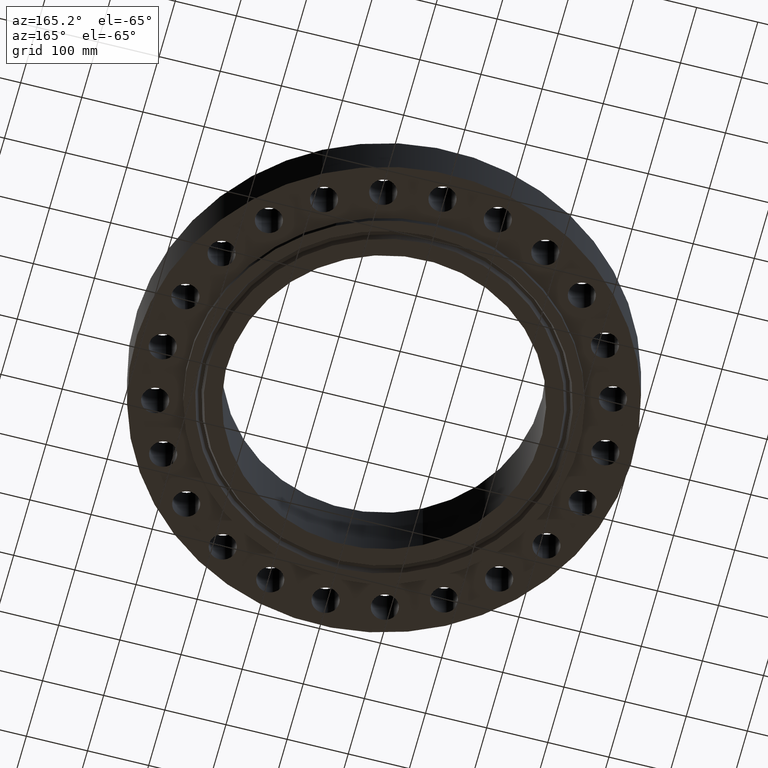
[diagram: clean part render]
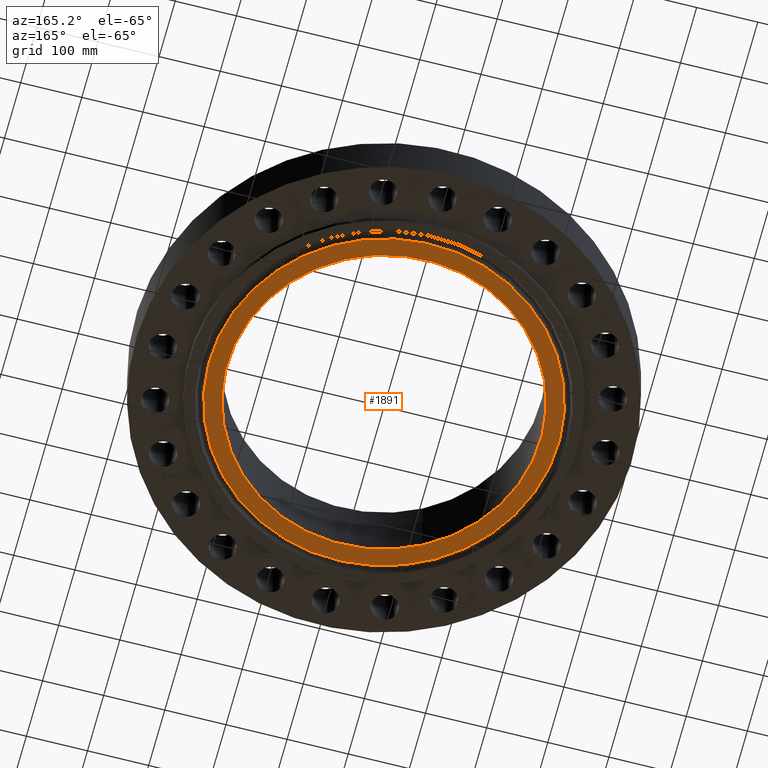
[diagram: same view with one face highlighted and labeled with its STEP entity id]
A machine part, auxiliary view. The second image highlights one B-rep face of the part: STEP entity #1891.
In plain terms, the highlighted planar face has unit normal (0, 0, -1).
Its self-contained STEP definition (entity closure, byte-faithful):
#334=AXIS2_PLACEMENT_3D('Circle Axis2P3D',#332,#333,$) ;
#353=AXIS2_PLACEMENT_3D('Circle Axis2P3D',#351,#352,$) ;
#1844=AXIS2_PLACEMENT_3D('Plane Axis2P3D',#1841,#1842,#1843) ;
#1871=AXIS2_PLACEMENT_3D('Circle Axis2P3D',#1869,#1870,$) ;
#1880=AXIS2_PLACEMENT_3D('Circle Axis2P3D',#1878,#1879,$) ;
#329=CARTESIAN_POINT('Vertex',(4.84219793992,8.86358387513,-0.375000000001)) ;
#332=CARTESIAN_POINT('Axis2P3D Location',(0.,0.,-0.375000000001)) ;
#336=CARTESIAN_POINT('Vertex',(-4.84219793992,-8.86358387513,-0.375000000001)) ;
#351=CARTESIAN_POINT('Axis2P3D Location',(0.,0.,-0.375000000001)) ;
#1841=CARTESIAN_POINT('Axis2P3D Location',(0.,10.1,-0.375000000001)) ;
#1869=CARTESIAN_POINT('Axis2P3D Location',(1.1189649382E-015,0.,-0.375000000001)) ;
#1873=CARTESIAN_POINT('Vertex',(-5.38604628528,9.85909159378,-0.375000000001)) ;
#1875=CARTESIAN_POINT('Vertex',(5.38604628528,-9.85909159378,-0.375000000001)) ;
#1878=CARTESIAN_POINT('Axis2P3D Location',(0.,-2.23792987641E-015,-0.375000000001)) ;
#333=DIRECTION('Axis2P3D Direction',(0.,0.,-0.0393700787402)) ;
#352=DIRECTION('Axis2P3D Direction',(0.,0.,-0.0393700787402)) ;
#1842=DIRECTION('Axis2P3D Direction',(0.,0.,-0.0393700787402)) ;
#1843=DIRECTION('Axis2P3D XDirection',(0.0393700787402,0.,0.)) ;
#1870=DIRECTION('Axis2P3D Direction',(0.,0.,-0.0393700787402)) ;
#1879=DIRECTION('Axis2P3D Direction',(0.,0.,-0.0393700787402)) ;
#1884=ORIENTED_EDGE('',*,*,#1877,.T.) ;
#1885=ORIENTED_EDGE('',*,*,#1882,.T.) ;
#1888=ORIENTED_EDGE('',*,*,#338,.F.) ;
#1889=ORIENTED_EDGE('',*,*,#355,.F.) ;
#1890=FACE_BOUND('',#1887,.T.) ;
#1891=ADVANCED_FACE('PartBody',(#1886,#1890),#1845,.T.) ;
#335=CIRCLE('generated circle',#334,10.1) ;
#354=CIRCLE('generated circle',#353,10.1) ;
#1872=CIRCLE('generated circle',#1871,11.234375) ;
#1881=CIRCLE('generated circle',#1880,11.234375) ;
#338=EDGE_CURVE('',#330,#337,#335,.T.) ;
#355=EDGE_CURVE('',#337,#330,#354,.T.) ;
#1877=EDGE_CURVE('',#1874,#1876,#1872,.T.) ;
#1882=EDGE_CURVE('',#1876,#1874,#1881,.T.) ;
#1883=EDGE_LOOP('',(#1884,#1885)) ;
#1887=EDGE_LOOP('',(#1888,#1889)) ;
#1886=FACE_OUTER_BOUND('',#1883,.T.) ;
#1845=PLANE('',#1844) ;
#330=VERTEX_POINT('',#329) ;
#337=VERTEX_POINT('',#336) ;
#1874=VERTEX_POINT('',#1873) ;
#1876=VERTEX_POINT('',#1875) ;